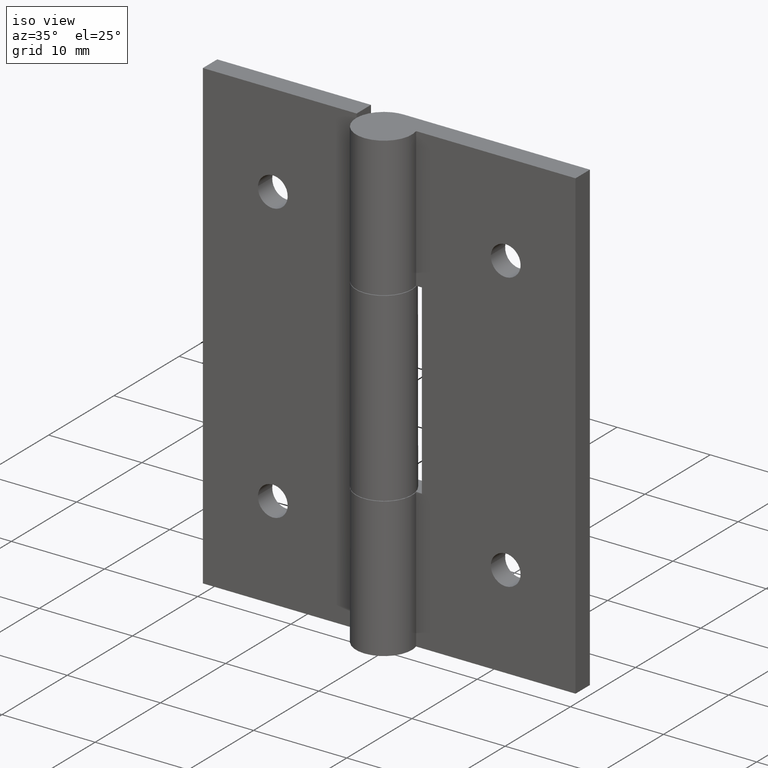
[diagram: clean part render]
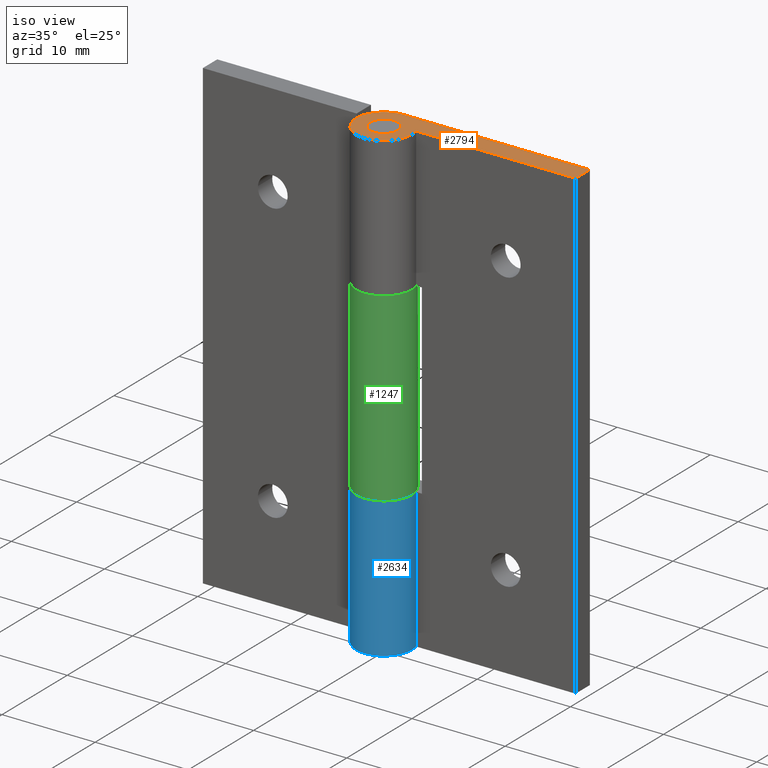
[diagram: same view with three faces highlighted in distinct colors, each labeled with its STEP entity id]
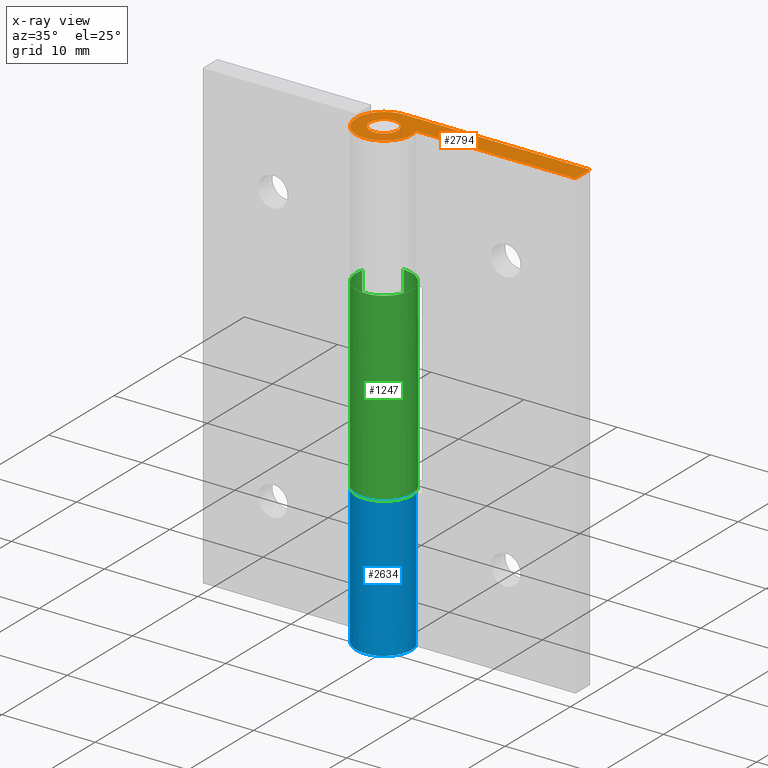
[diagram: x-ray of the same camera — body ghosted, the three highlighted faces saturated]
A machine part, iso view with three faces highlighted in distinct colors.
The next image is the same camera in x-ray (body ghosted, the three faces saturated) — at least one of them is partly hidden behind the body in this view.
Their STEP definitions:

[orange] entity #2794 — the highlighted face is a freeform B-spline surface patch.
#1421=CARTESIAN_POINT('',(0.091572809453340,-1.497202197623561,50.0));
#1422=VERTEX_POINT('',#1421);
#1428=CARTESIAN_POINT('',(1.500000000000000,0.0,50.0));
#1429=VERTEX_POINT('',#1428);
#1430=CARTESIAN_POINT('',(1.500000000000000,0.0,50.0));
#1431=CARTESIAN_POINT('',(1.500000000000000,-1.411059100073276,49.999999999999993));
#1432=CARTESIAN_POINT('',(0.091572809453340,-1.497202197623561,50.0));
#1440=(BOUNDED_CURVE()B_SPLINE_CURVE(2,(#1430,#1431,#1432),.UNSPECIFIED.,.F.,.U.)B_SPLINE_CURVE_WITH_KNOTS((3,3),(0.500000000000000,0.739332962207151),.UNSPECIFIED.)CURVE()GEOMETRIC_REPRESENTATION_ITEM()RATIONAL_B_SPLINE_CURVE((1.0,0.719603993323957,0.976072041598581))REPRESENTATION_ITEM(''));
#1441=EDGE_CURVE('',#1429,#1422,#1440,.T.);
#1443=CARTESIAN_POINT('',(-0.177051352095006,1.489514289532440,50.0));
#1444=VERTEX_POINT('',#1443);
#1445=CARTESIAN_POINT('',(-0.177051352095006,1.489514289532440,50.0));
#1446=CARTESIAN_POINT('',(-0.088836179588895,1.500000000000000,50.000000000000007));
#1447=CARTESIAN_POINT('',(0.0,1.500000000000000,50.0));
#1448=CARTESIAN_POINT('',(1.500000000000000,1.500000000000000,50.0));
#1449=CARTESIAN_POINT('',(1.500000000000000,0.0,50.0));
#1457=(BOUNDED_CURVE()B_SPLINE_CURVE(2,(#1445,#1446,#1447,#1448,#1449),.UNSPECIFIED.,.F.,.U.)B_SPLINE_CURVE_WITH_KNOTS((3,2,3),(0.229562473490712,0.250000000000000,0.500000000000000),.UNSPECIFIED.)CURVE()GEOMETRIC_REPRESENTATION_ITEM()RATIONAL_B_SPLINE_CURVE((0.956026754139018,0.976055948304438,1.0,0.707106781186548,1.0))REPRESENTATION_ITEM(''));
#1458=EDGE_CURVE('',#1444,#1429,#1457,.T.);
#1502=CARTESIAN_POINT('',(-1.500000000000000,0.0,50.0));
#1503=VERTEX_POINT('',#1502);
#1504=CARTESIAN_POINT('',(-1.500000000000000,0.0,50.0));
#1505=CARTESIAN_POINT('',(-1.500000000000000,1.332261788729130,49.999999999999993));
#1506=CARTESIAN_POINT('',(-0.177051352095006,1.489514289532440,50.0));
#1514=(BOUNDED_CURVE()B_SPLINE_CURVE(2,(#1504,#1505,#1506),.UNSPECIFIED.,.F.,.U.)B_SPLINE_CURVE_WITH_KNOTS((3,3),(0.0,0.229562473490712),.UNSPECIFIED.)CURVE()GEOMETRIC_REPRESENTATION_ITEM()RATIONAL_B_SPLINE_CURVE((1.0,0.731050832882109,0.956026754139018))REPRESENTATION_ITEM(''));
#1515=EDGE_CURVE('',#1503,#1444,#1514,.T.);
#1517=CARTESIAN_POINT('',(0.091572809453340,-1.497202197623562,50.0));
#1518=CARTESIAN_POINT('',(0.045829145099362,-1.500000000000000,50.0));
#1519=CARTESIAN_POINT('',(0.0,-1.500000000000000,50.0));
#1520=CARTESIAN_POINT('',(-1.500000000000000,-1.500000000000000,50.0));
#1521=CARTESIAN_POINT('',(-1.500000000000000,0.0,50.0));
#1529=(BOUNDED_CURVE()B_SPLINE_CURVE(2,(#1517,#1518,#1519,#1520,#1521),.UNSPECIFIED.,.F.,.U.)B_SPLINE_CURVE_WITH_KNOTS((3,2,3),(0.739332962207151,0.750000000000000,1.0),.UNSPECIFIED.)CURVE()GEOMETRIC_REPRESENTATION_ITEM()RATIONAL_B_SPLINE_CURVE((0.976072041598582,0.987502787862591,1.0,0.707106781186548,1.0))REPRESENTATION_ITEM(''));
#1530=EDGE_CURVE('',#1422,#1503,#1529,.T.);
#2459=CARTESIAN_POINT('',(-5.510729E-016,3.0,50.0));
#2460=VERTEX_POINT('',#2459);
#2489=CARTESIAN_POINT('',(2.891366458960195,0.799999999999990,50.0));
#2490=VERTEX_POINT('',#2489);
#2496=CARTESIAN_POINT('',(2.891366458960195,0.799999999999991,50.0));
#2497=CARTESIAN_POINT('',(3.465870241890749,-1.276376210638973,50.000000000000007));
#2498=CARTESIAN_POINT('',(1.681895628722578,-2.484195462133341,50.0));
#2499=CARTESIAN_POINT('',(-0.102078984445593,-3.692014713627709,50.000000000000007));
#2500=CARTESIAN_POINT('',(-1.816590212458499,-2.387467277262662,50.0));
#2501=CARTESIAN_POINT('',(-3.531101440471402,-1.082919840897615,50.000000000000007));
#2502=CARTESIAN_POINT('',(-2.842745313230505,0.958540079551190,50.0));
#2503=CARTESIAN_POINT('',(-2.154389185989606,3.000000000000000,50.000000000000007));
#2504=CARTESIAN_POINT('',(0.0,3.0,50.0));
#2512=(BOUNDED_CURVE()B_SPLINE_CURVE(2,(#2496,#2497,#2498,#2499,#2500,#2501,#2502,#2503,#2504),.UNSPECIFIED.,.F.,.U.)B_SPLINE_CURVE_WITH_KNOTS((3,2,2,2,3),(0.0,0.250000000000000,0.500000000000000,0.750000000000000,1.0),.UNSPECIFIED.)CURVE()GEOMETRIC_REPRESENTATION_ITEM()RATIONAL_B_SPLINE_CURVE((1.0,0.812254073504836,1.0,0.812254073504836,1.0,0.812254073504836,1.0,0.812254073504836,1.0))REPRESENTATION_ITEM(''));
#2513=EDGE_CURVE('',#2490,#2460,#2512,.T.);
#2532=CARTESIAN_POINT('',(20.0,3.0,50.0));
#2533=VERTEX_POINT('',#2532);
#2539=CARTESIAN_POINT('',(20.0,0.799999999999990,50.0));
#2540=VERTEX_POINT('',#2539);
#2541=CARTESIAN_POINT('',(20.0,3.0,50.0));
#2542=CARTESIAN_POINT('',(20.0,0.799999999999990,50.0));
#2543=QUASI_UNIFORM_CURVE('',1,(#2541,#2542),.UNSPECIFIED.,.F.,.U.);
#2544=EDGE_CURVE('',#2533,#2540,#2543,.T.);
#2658=CARTESIAN_POINT('',(20.0,0.799999999999990,50.0));
#2659=CARTESIAN_POINT('',(2.891366458960195,0.799999999999990,50.0));
#2660=QUASI_UNIFORM_CURVE('',1,(#2658,#2659),.UNSPECIFIED.,.F.,.U.);
#2661=EDGE_CURVE('',#2540,#2490,#2660,.T.);
#2690=CARTESIAN_POINT('',(-5.510729E-016,3.0,50.0));
#2691=CARTESIAN_POINT('',(20.0,3.0,50.0));
#2692=QUASI_UNIFORM_CURVE('',1,(#2690,#2691),.UNSPECIFIED.,.F.,.U.);
#2693=EDGE_CURVE('',#2460,#2533,#2692,.T.);
#2777=CARTESIAN_POINT('',(-4.139732018714166,-3.299396620088867,50.0));
#2778=CARTESIAN_POINT('',(21.148416798182019,-3.299396620088867,50.0));
#2779=CARTESIAN_POINT('',(-4.139732018714166,3.299685716601935,50.0));
#2780=CARTESIAN_POINT('',(21.148416798182019,3.299685716601935,50.0));
#2781=B_SPLINE_SURFACE_WITH_KNOTS('',1,1,((#2777,#2779),(#2778,#2780)),.UNSPECIFIED.,.F.,.F.,.U.,(2,2),(2,2),(0.0,25.288148816896189),(0.0,6.599082336690802),.UNSPECIFIED.);
#2782=ORIENTED_EDGE('',*,*,#2693,.F.);
#2783=ORIENTED_EDGE('',*,*,#2513,.F.);
#2784=ORIENTED_EDGE('',*,*,#2661,.F.);
#2785=ORIENTED_EDGE('',*,*,#2544,.F.);
#2786=EDGE_LOOP('',(#2782,#2783,#2784,#2785));
#2787=FACE_OUTER_BOUND('',#2786,.T.);
#2788=ORIENTED_EDGE('',*,*,#1441,.T.);
#2789=ORIENTED_EDGE('',*,*,#1530,.T.);
#2790=ORIENTED_EDGE('',*,*,#1515,.T.);
#2791=ORIENTED_EDGE('',*,*,#1458,.T.);
#2792=EDGE_LOOP('',(#2788,#2789,#2790,#2791));
#2793=FACE_BOUND('',#2792,.T.);
#2794=ADVANCED_FACE('',(#2787,#2793),#2781,.T.);

[blue] entity #2634 — the highlighted face is a freeform B-spline surface patch.
#2554=CARTESIAN_POINT('',(0.106477102102893,2.998109842338630,15.375000000000000));
#2555=CARTESIAN_POINT('',(0.106477102102893,2.998109842338630,-0.384375000000000));
#2556=CARTESIAN_POINT('',(-3.302198186550077,3.119168070966572,15.374999999999995));
#2557=CARTESIAN_POINT('',(-3.302198186550077,3.119168070966572,-0.384375000000000));
#2558=CARTESIAN_POINT('',(-2.987177270559451,-0.277077523904384,15.375000000000000));
#2559=CARTESIAN_POINT('',(-2.987177270559451,-0.277077523904384,-0.384375000000000));
#2560=CARTESIAN_POINT('',(-2.672156354568825,-3.673323118775340,15.374999999999995));
#2561=CARTESIAN_POINT('',(-2.672156354568825,-3.673323118775340,-0.384375000000000));
#2562=CARTESIAN_POINT('',(0.656099356428951,-2.927376578866052,15.375000000000000));
#2563=CARTESIAN_POINT('',(0.656099356428951,-2.927376578866052,-0.384375000000000));
#2564=CARTESIAN_POINT('',(3.984355067426725,-2.181430038956764,15.374999999999995));
#2565=CARTESIAN_POINT('',(3.984355067426725,-2.181430038956764,-0.384375000000000));
#2566=CARTESIAN_POINT('',(2.819686064529717,1.024387864774330,15.375000000000000));
#2567=CARTESIAN_POINT('',(2.819686064529717,1.024387864774330,-0.384375000000000));
#2575=(BOUNDED_SURFACE()B_SPLINE_SURFACE(1,2,((#2554,#2556,#2558,#2560,#2562,#2564,#2566),(#2555,#2557,#2559,#2561,#2563,#2565,#2567)),.UNSPECIFIED.,.F.,.F.,.U.)B_SPLINE_SURFACE_WITH_KNOTS((2,2),(3,2,2,3),(0.0,15.759375000000000),(0.0,5.426614549640453,10.853229099280910,16.279843648921361),.UNSPECIFIED.)GEOMETRIC_REPRESENTATION_ITEM()RATIONAL_B_SPLINE_SURFACE(((1.0,0.660438623999008,1.0,0.660438623999008,1.0,0.660438623999008,1.0),(1.0,0.660438623999008,1.0,0.660438623999008,1.0,0.660438623999008,1.0)))REPRESENTATION_ITEM('')SURFACE());
#2576=CARTESIAN_POINT('',(2.891366458960195,0.799999999999990,15.0));
#2577=VERTEX_POINT('',#2576);
#2578=CARTESIAN_POINT('',(2.891366458960195,0.799999999999990,0.0));
#2579=VERTEX_POINT('',#2578);
#2580=CARTESIAN_POINT('',(2.891366458960195,0.799999999999990,15.0));
#2581=CARTESIAN_POINT('',(2.891366458960195,0.799999999999990,0.0));
#2582=QUASI_UNIFORM_CURVE('',1,(#2580,#2581),.UNSPECIFIED.,.F.,.U.);
#2583=EDGE_CURVE('',#2577,#2579,#2582,.T.);
#2584=ORIENTED_EDGE('',*,*,#2583,.F.);
#2585=CARTESIAN_POINT('',(-5.510729E-016,3.0,15.0));
#2586=VERTEX_POINT('',#2585);
#2587=CARTESIAN_POINT('',(0.0,3.0,15.0));
#2588=CARTESIAN_POINT('',(-2.154389185989602,3.0,15.000000000000005));
#2589=CARTESIAN_POINT('',(-2.842745313230503,0.958540079551194,15.0));
#2590=CARTESIAN_POINT('',(-3.531101440471405,-1.082919840897612,15.000000000000005));
#2591=CARTESIAN_POINT('',(-1.816590212458500,-2.387467277262661,15.0));
#2592=CARTESIAN_POINT('',(-0.102078984445597,-3.692014713627708,15.000000000000005));
#2593=CARTESIAN_POINT('',(1.681895628722574,-2.484195462133344,15.0));
#2594=CARTESIAN_POINT('',(3.465870241890748,-1.276376210638978,15.000000000000005));
#2595=CARTESIAN_POINT('',(2.891366458960195,0.799999999999989,15.0));
#2603=(BOUNDED_CURVE()B_SPLINE_CURVE(2,(#2587,#2588,#2589,#2590,#2591,#2592,#2593,#2594,#2595),.UNSPECIFIED.,.F.,.U.)B_SPLINE_CURVE_WITH_KNOTS((3,2,2,2,3),(0.0,0.250000000000000,0.500000000000000,0.750000000000000,1.0),.UNSPECIFIED.)CURVE()GEOMETRIC_REPRESENTATION_ITEM()RATIONAL_B_SPLINE_CURVE((1.0,0.812254073504836,1.0,0.812254073504836,1.0,0.812254073504836,1.0,0.812254073504836,1.0))REPRESENTATION_ITEM(''));
#2604=EDGE_CURVE('',#2586,#2577,#2603,.T.);
#2605=ORIENTED_EDGE('',*,*,#2604,.F.);
#2606=CARTESIAN_POINT('',(-5.510729E-016,3.0,0.0));
#2607=VERTEX_POINT('',#2606);
#2608=CARTESIAN_POINT('',(-5.510729E-016,3.0,15.0));
#2609=CARTESIAN_POINT('',(-5.510729E-016,3.0,0.0));
#2610=QUASI_UNIFORM_CURVE('',1,(#2608,#2609),.UNSPECIFIED.,.F.,.U.);
#2611=EDGE_CURVE('',#2586,#2607,#2610,.T.);
#2612=ORIENTED_EDGE('',*,*,#2611,.T.);
#2613=CARTESIAN_POINT('',(2.891366458960195,0.799999999999991,0.0));
#2614=CARTESIAN_POINT('',(3.465870241890749,-1.276376210638973,0.0));
#2615=CARTESIAN_POINT('',(1.681895628722578,-2.484195462133341,0.0));
#2616=CARTESIAN_POINT('',(-0.102078984445593,-3.692014713627709,0.0));
#2617=CARTESIAN_POINT('',(-1.816590212458499,-2.387467277262662,0.0));
#2618=CARTESIAN_POINT('',(-3.531101440471402,-1.082919840897615,0.0));
#2619=CARTESIAN_POINT('',(-2.842745313230505,0.958540079551190,0.0));
#2620=CARTESIAN_POINT('',(-2.154389185989606,3.000000000000000,0.0));
#2621=CARTESIAN_POINT('',(0.0,3.0,0.0));
#2629=(BOUNDED_CURVE()B_SPLINE_CURVE(2,(#2613,#2614,#2615,#2616,#2617,#2618,#2619,#2620,#2621),.UNSPECIFIED.,.F.,.U.)B_SPLINE_CURVE_WITH_KNOTS((3,2,2,2,3),(0.0,0.250000000000000,0.500000000000000,0.750000000000000,1.0),.UNSPECIFIED.)CURVE()GEOMETRIC_REPRESENTATION_ITEM()RATIONAL_B_SPLINE_CURVE((1.0,0.812254073504836,1.0,0.812254073504836,1.0,0.812254073504836,1.0,0.812254073504836,1.0))REPRESENTATION_ITEM(''));
#2630=EDGE_CURVE('',#2579,#2607,#2629,.T.);
#2631=ORIENTED_EDGE('',*,*,#2630,.F.);
#2632=EDGE_LOOP('',(#2584,#2605,#2612,#2631));
#2633=FACE_OUTER_BOUND('',#2632,.T.);
#2634=ADVANCED_FACE('',(#2633),#2575,.T.);

[green] entity #1247 — the highlighted face is a freeform B-spline surface patch.
#1029=CARTESIAN_POINT('',(0.0,3.0,15.050000000000001));
#1030=VERTEX_POINT('',#1029);
#1036=CARTESIAN_POINT('',(-2.891366458960195,0.799999999999990,15.050000000000001));
#1037=VERTEX_POINT('',#1036);
#1038=CARTESIAN_POINT('',(0.0,3.0,15.050000000000001));
#1039=CARTESIAN_POINT('',(2.154389185989602,3.0,15.050000000000002));
#1040=CARTESIAN_POINT('',(2.842745313230503,0.958540079551194,15.050000000000001));
#1041=CARTESIAN_POINT('',(3.531101440471405,-1.082919840897612,15.050000000000002));
#1042=CARTESIAN_POINT('',(1.816590212458500,-2.387467277262661,15.050000000000001));
#1043=CARTESIAN_POINT('',(0.102078984445597,-3.692014713627708,15.050000000000002));
#1044=CARTESIAN_POINT('',(-1.681895628722574,-2.484195462133344,15.050000000000001));
#1045=CARTESIAN_POINT('',(-3.465870241890748,-1.276376210638978,15.050000000000002));
#1046=CARTESIAN_POINT('',(-2.891366458960195,0.799999999999989,15.050000000000001));
#1054=(BOUNDED_CURVE()B_SPLINE_CURVE(2,(#1038,#1039,#1040,#1041,#1042,#1043,#1044,#1045,#1046),.UNSPECIFIED.,.F.,.U.)B_SPLINE_CURVE_WITH_KNOTS((3,2,2,2,3),(0.0,0.250000000000000,0.500000000000000,0.750000000000000,1.0),.UNSPECIFIED.)CURVE()GEOMETRIC_REPRESENTATION_ITEM()RATIONAL_B_SPLINE_CURVE((1.0,0.812254073504836,1.0,0.812254073504836,1.0,0.812254073504836,1.0,0.812254073504836,1.0))REPRESENTATION_ITEM(''));
#1055=EDGE_CURVE('',#1030,#1037,#1054,.T.);
#1112=CARTESIAN_POINT('',(-2.891366458960195,0.799999999999990,34.950000000000003));
#1113=VERTEX_POINT('',#1112);
#1114=CARTESIAN_POINT('',(0.0,3.0,34.950000000000003));
#1115=VERTEX_POINT('',#1114);
#1116=CARTESIAN_POINT('',(-2.891366458960195,0.799999999999991,34.950000000000003));
#1117=CARTESIAN_POINT('',(-3.465870241890749,-1.276376210638973,34.950000000000010));
#1118=CARTESIAN_POINT('',(-1.681895628722578,-2.484195462133341,34.950000000000003));
#1119=CARTESIAN_POINT('',(0.102078984445593,-3.692014713627709,34.950000000000010));
#1120=CARTESIAN_POINT('',(1.816590212458499,-2.387467277262662,34.950000000000003));
#1121=CARTESIAN_POINT('',(3.531101440471402,-1.082919840897615,34.950000000000010));
#1122=CARTESIAN_POINT('',(2.842745313230505,0.958540079551190,34.950000000000003));
#1123=CARTESIAN_POINT('',(2.154389185989606,3.000000000000000,34.950000000000010));
#1124=CARTESIAN_POINT('',(0.0,3.0,34.950000000000003));
#1132=(BOUNDED_CURVE()B_SPLINE_CURVE(2,(#1116,#1117,#1118,#1119,#1120,#1121,#1122,#1123,#1124),.UNSPECIFIED.,.F.,.U.)B_SPLINE_CURVE_WITH_KNOTS((3,2,2,2,3),(0.0,0.250000000000000,0.500000000000000,0.750000000000000,1.0),.UNSPECIFIED.)CURVE()GEOMETRIC_REPRESENTATION_ITEM()RATIONAL_B_SPLINE_CURVE((1.0,0.812254073504836,1.0,0.812254073504836,1.0,0.812254073504836,1.0,0.812254073504836,1.0))REPRESENTATION_ITEM(''));
#1133=EDGE_CURVE('',#1113,#1115,#1132,.T.);
#1211=CARTESIAN_POINT('',(-2.861150852244680,0.902117398512820,35.447500000000012));
#1212=CARTESIAN_POINT('',(-2.861150852244680,0.902117398512820,14.540062499999991));
#1213=CARTESIAN_POINT('',(-3.886805496497449,-2.350843540218950,35.447500000000012));
#1214=CARTESIAN_POINT('',(-3.886805496497449,-2.350843540218950,14.540062499999992));
#1215=CARTESIAN_POINT('',(-0.529536385766217,-2.952895395395788,35.447500000000012));
#1216=CARTESIAN_POINT('',(-0.529536385766217,-2.952895395395788,14.540062499999991));
#1217=CARTESIAN_POINT('',(2.827732724965015,-3.554947250572625,35.447500000000012));
#1218=CARTESIAN_POINT('',(2.827732724965015,-3.554947250572625,14.540062499999992));
#1219=CARTESIAN_POINT('',(2.996332646007367,-0.148292530056258,35.447500000000012));
#1220=CARTESIAN_POINT('',(2.996332646007367,-0.148292530056258,14.540062499999991));
#1221=CARTESIAN_POINT('',(3.164932567049720,3.258362190460110,35.447500000000012));
#1222=CARTESIAN_POINT('',(3.164932567049720,3.258362190460110,14.540062499999992));
#1223=CARTESIAN_POINT('',(-0.235377287183536,2.990752001199382,35.447500000000012));
#1224=CARTESIAN_POINT('',(-0.235377287183536,2.990752001199382,14.540062499999991));
#1232=(BOUNDED_SURFACE()B_SPLINE_SURFACE(1,2,((#1211,#1213,#1215,#1217,#1219,#1221,#1223),(#1212,#1214,#1216,#1218,#1220,#1222,#1224)),.UNSPECIFIED.,.F.,.F.,.U.)B_SPLINE_SURFACE_WITH_KNOTS((2,2),(3,2,2,3),(0.0,20.907437500000022),(0.0,5.426614549640453,10.853229099280910,16.279843648921361),.UNSPECIFIED.)GEOMETRIC_REPRESENTATION_ITEM()RATIONAL_B_SPLINE_SURFACE(((1.0,0.660438623999008,1.0,0.660438623999008,1.0,0.660438623999008,1.0),(1.0,0.660438623999008,1.0,0.660438623999008,1.0,0.660438623999008,1.0)))REPRESENTATION_ITEM('')SURFACE());
#1233=CARTESIAN_POINT('',(-2.891366458960195,0.799999999999990,34.950000000000003));
#1234=CARTESIAN_POINT('',(-2.891366458960195,0.799999999999990,15.050000000000001));
#1235=QUASI_UNIFORM_CURVE('',1,(#1233,#1234),.UNSPECIFIED.,.F.,.U.);
#1236=EDGE_CURVE('',#1113,#1037,#1235,.T.);
#1237=ORIENTED_EDGE('',*,*,#1236,.T.);
#1238=ORIENTED_EDGE('',*,*,#1055,.F.);
#1239=CARTESIAN_POINT('',(0.0,3.0,34.950000000000003));
#1240=CARTESIAN_POINT('',(0.0,3.0,15.050000000000001));
#1241=QUASI_UNIFORM_CURVE('',1,(#1239,#1240),.UNSPECIFIED.,.F.,.U.);
#1242=EDGE_CURVE('',#1115,#1030,#1241,.T.);
#1243=ORIENTED_EDGE('',*,*,#1242,.F.);
#1244=ORIENTED_EDGE('',*,*,#1133,.F.);
#1245=EDGE_LOOP('',(#1237,#1238,#1243,#1244));
#1246=FACE_OUTER_BOUND('',#1245,.T.);
#1247=ADVANCED_FACE('',(#1246),#1232,.T.);